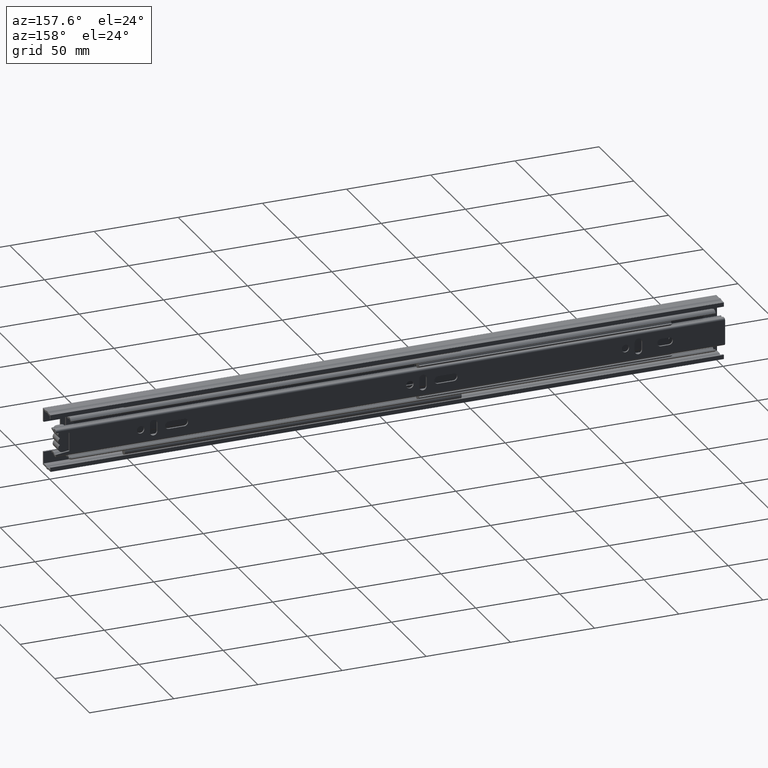
[diagram: clean part render]
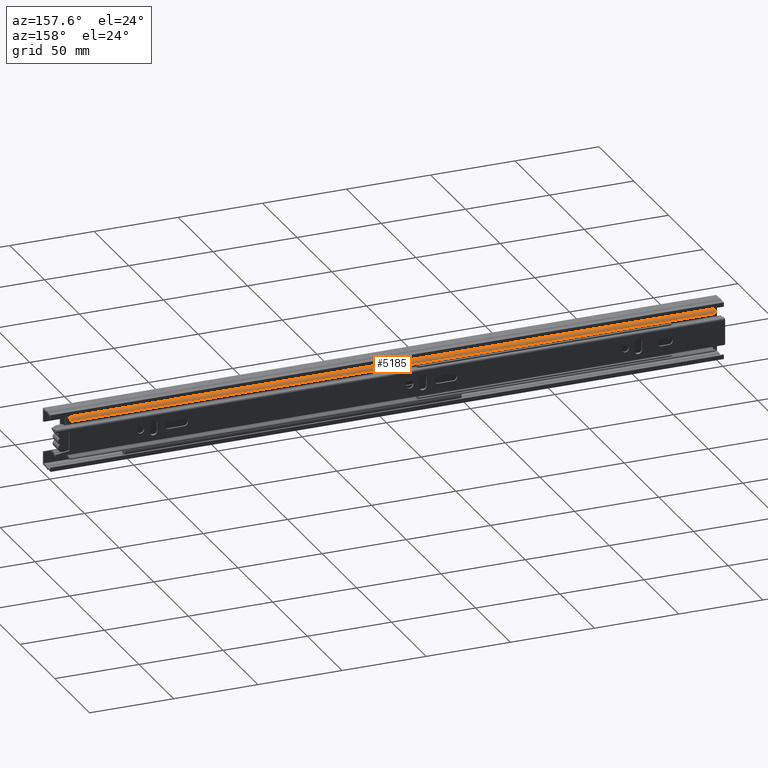
[diagram: same view with one face highlighted and labeled with its STEP entity id]
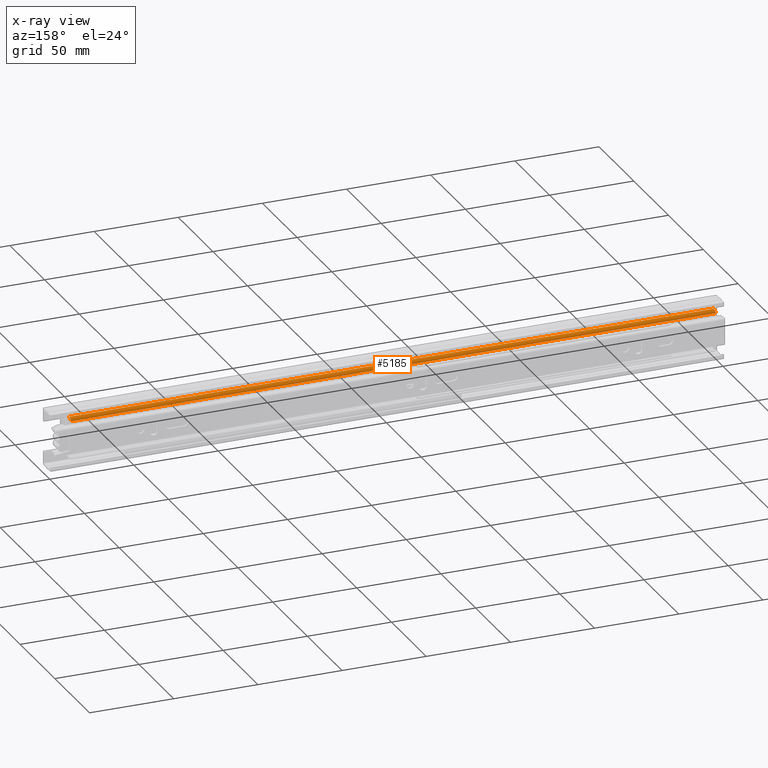
[diagram: x-ray of the same camera — body ghosted, the highlighted face saturated]
A machine part, auxiliary view. The second image highlights one B-rep face of the part: STEP entity #5185.
The next image is the same camera in x-ray: the body ghosted, the highlighted face saturated — about 0% of this face is hidden behind the body in this view.
In plain terms, the highlighted cylindrical surface (edge-blend (fillet) strip) has radius 3.25 mm, axis along (1, -0, 0).
Its self-contained STEP definition (entity closure, byte-faithful):
#119=CYLINDRICAL_SURFACE('',#5598,3.25);
#393=FACE_OUTER_BOUND('',#704,.T.);
#704=EDGE_LOOP('',(#4259,#4260,#4261,#4262));
#1170=LINE('',#8248,#1708);
#1171=LINE('',#8252,#1709);
#1708=VECTOR('',#6718,383.);
#1709=VECTOR('',#6723,383.);
#2044=CIRCLE('',#5586,3.25);
#2052=CIRCLE('',#5599,3.25);
#2424=VERTEX_POINT('',#8192);
#2425=VERTEX_POINT('',#8194);
#2447=VERTEX_POINT('',#8246);
#2448=VERTEX_POINT('',#8250);
#3070=EDGE_CURVE('',#2424,#2425,#2044,.T.);
#3097=EDGE_CURVE('',#2424,#2447,#1170,.T.);
#3098=EDGE_CURVE('',#2448,#2447,#2052,.T.);
#3099=EDGE_CURVE('',#2425,#2448,#1171,.T.);
#4259=ORIENTED_EDGE('',*,*,#3097,.T.);
#4260=ORIENTED_EDGE('',*,*,#3098,.F.);
#4261=ORIENTED_EDGE('',*,*,#3099,.F.);
#4262=ORIENTED_EDGE('',*,*,#3070,.F.);
#5185=ADVANCED_FACE('',(#393),#119,.T.);
#5586=AXIS2_PLACEMENT_3D('',#8195,#6675,#6676);
#5598=AXIS2_PLACEMENT_3D('',#8249,#6719,#6720);
#5599=AXIS2_PLACEMENT_3D('',#8251,#6721,#6722);
#6675=DIRECTION('center_axis',(-1.,0.,0.));
#6676=DIRECTION('ref_axis',(0.,0.832619023245218,0.553846153846155));
#6718=DIRECTION('',(1.,0.,0.));
#6719=DIRECTION('center_axis',(1.,0.,0.));
#6720=DIRECTION('ref_axis',(0.,0.832619023245218,0.553846153846155));
#6721=DIRECTION('center_axis',(1.,0.,0.));
#6722=DIRECTION('ref_axis',(0.,0.832619023245218,0.553846153846155));
#6723=DIRECTION('',(1.,0.,0.));
#8192=CARTESIAN_POINT('',(-191.5,7.59203820673923,12.6100583821151));
#8194=CARTESIAN_POINT('',(-191.5,10.806011825547,11.2));
#8195=CARTESIAN_POINT('Origin',(-191.5,8.1,9.39999999999999));
#8246=CARTESIAN_POINT('',(191.5,7.59203820673923,12.6100583821151));
#8248=CARTESIAN_POINT('',(0.,7.59203820673923,12.6100583821151));
#8249=CARTESIAN_POINT('Origin',(0.,8.1,9.39999999999999));
#8250=CARTESIAN_POINT('',(191.5,10.806011825547,11.2));
#8251=CARTESIAN_POINT('Origin',(191.5,8.1,9.39999999999999));
#8252=CARTESIAN_POINT('',(0.,10.806011825547,11.2));